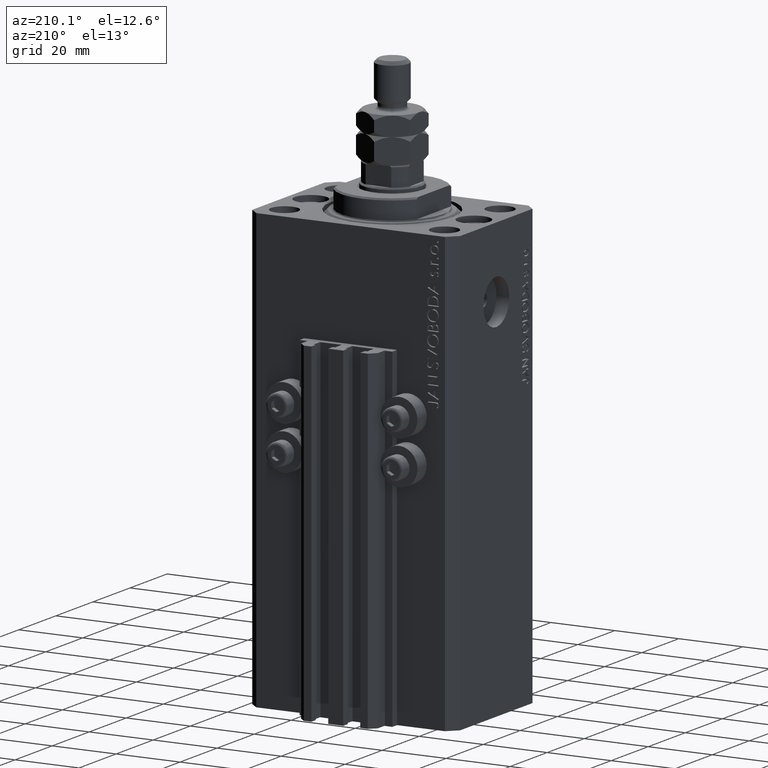
[diagram: clean part render]
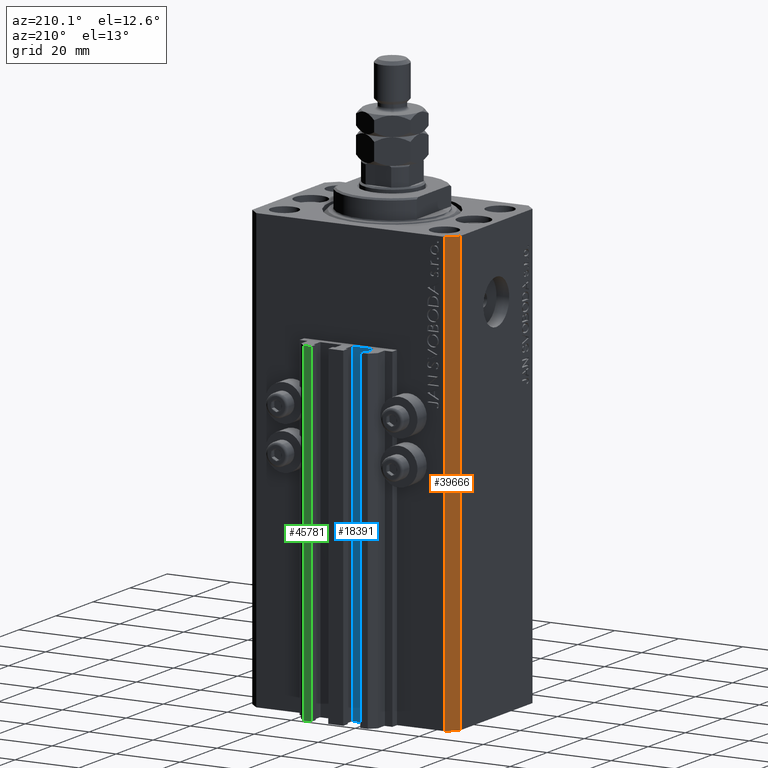
[diagram: same view with three faces highlighted in distinct colors, each labeled with its STEP entity id]
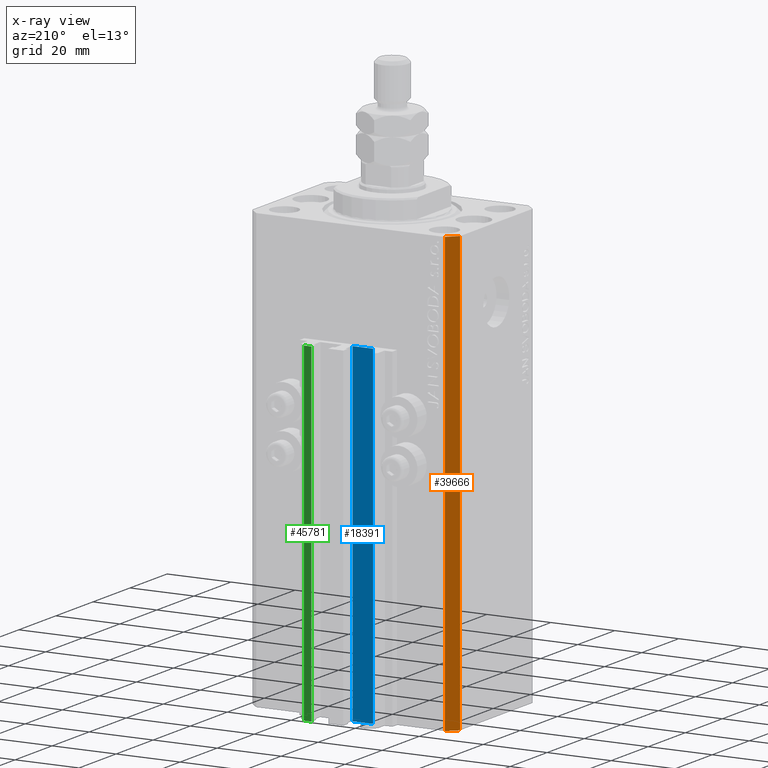
[diagram: x-ray of the same camera — body ghosted, the three highlighted faces saturated]
A machine part, auxiliary view with three faces highlighted in distinct colors.
The next image is the same camera in x-ray (body ghosted, the three faces saturated) — at least one of them is partly hidden behind the body in this view.
Their STEP definitions:

[orange] entity #39666 — the highlighted planar face has unit normal (-0.7071, 0.7071, 0).
#219 = LINE ( 'NONE', #3195, #4381 ) ;
#1253 = ORIENTED_EDGE ( 'NONE', *, *, #16434, .T. ) ;
#2565 = CARTESIAN_POINT ( 'NONE',  ( -29.49999999999650413, 22.49999999999949907, -137.0000000000000000 ) ) ;
#3195 = CARTESIAN_POINT ( 'NONE',  ( -29.49999999999650413, 22.49999999999949907, 0.000000000000000000 ) ) ;
#4381 = VECTOR ( 'NONE', #26360, 1000.000000000000114 ) ;
#5050 = DIRECTION ( 'NONE',  ( -0.7071067811865474617, -0.7071067811865474617, 0.000000000000000000 ) ) ;
#6721 = VECTOR ( 'NONE', #32121, 1000.000000000000000 ) ;
#13436 = FACE_OUTER_BOUND ( 'NONE', #17904, .T. ) ;
#13884 = ORIENTED_EDGE ( 'NONE', *, *, #30426, .T. ) ;
#13973 = VECTOR ( 'NONE', #5050, 1000.000000000000114 ) ;
#14706 = VERTEX_POINT ( 'NONE', #45389 ) ;
#14916 = CARTESIAN_POINT ( 'NONE',  ( -29.49999999999650413, 22.49999999999949907, 0.000000000000000000 ) ) ;
#15120 = VERTEX_POINT ( 'NONE', #42763 ) ;
#16145 = LINE ( 'NONE', #19832, #13973 ) ;
#16235 = VERTEX_POINT ( 'NONE', #14916 ) ;
#16434 = EDGE_CURVE ( 'NONE', #15120, #14706, #24494, .T. ) ;
#16622 = DIRECTION ( 'NONE',  ( 0.000000000000000000, 0.000000000000000000, 1.000000000000000000 ) ) ;
#17904 = EDGE_LOOP ( 'NONE', ( #20230, #23430, #13884, #1253 ) ) ;
#18092 = DIRECTION ( 'NONE',  ( -0.7071067811865475727, 0.7071067811865475727, 0.000000000000000000 ) ) ;
#19832 = CARTESIAN_POINT ( 'NONE',  ( -29.49999999999650413, 22.49999999999949907, -137.0000000000000000 ) ) ;
#20230 = ORIENTED_EDGE ( 'NONE', *, *, #24574, .F. ) ;
#23430 = ORIENTED_EDGE ( 'NONE', *, *, #40021, .F. ) ;
#24494 = LINE ( 'NONE', #43482, #38973 ) ;
#24574 = EDGE_CURVE ( 'NONE', #16235, #14706, #219, .T. ) ;
#24833 = AXIS2_PLACEMENT_3D ( 'NONE', #2565, #18092, #28473 ) ;
#25790 = CARTESIAN_POINT ( 'NONE',  ( -29.49999999999650413, 22.49999999999949907, -137.0000000000000000 ) ) ;
#26360 = DIRECTION ( 'NONE',  ( -0.7071067811865474617, -0.7071067811865474617, 0.000000000000000000 ) ) ;
#28473 = DIRECTION ( 'NONE',  ( -0.7071067811865474617, -0.7071067811865474617, 0.000000000000000000 ) ) ;
#30426 = EDGE_CURVE ( 'NONE', #46012, #15120, #16145, .T. ) ;
#32121 = DIRECTION ( 'NONE',  ( 0.000000000000000000, 0.000000000000000000, 1.000000000000000000 ) ) ;
#36060 = CARTESIAN_POINT ( 'NONE',  ( -29.49999999999650413, 22.49999999999949907, -137.0000000000000000 ) ) ;
#36355 = PLANE ( 'NONE',  #24833 ) ;
#38973 = VECTOR ( 'NONE', #16622, 1000.000000000000000 ) ;
#39666 = ADVANCED_FACE ( 'NONE', ( #13436 ), #36355, .T. ) ;
#40021 = EDGE_CURVE ( 'NONE', #46012, #16235, #47638, .T. ) ;
#42763 = CARTESIAN_POINT ( 'NONE',  ( -32.49999999999650413, 19.49999999999949907, -137.0000000000000000 ) ) ;
#43482 = CARTESIAN_POINT ( 'NONE',  ( -32.49999999999650413, 19.49999999999949907, -137.0000000000000000 ) ) ;
#45389 = CARTESIAN_POINT ( 'NONE',  ( -32.49999999999650413, 19.49999999999949907, 0.000000000000000000 ) ) ;
#46012 = VERTEX_POINT ( 'NONE', #25790 ) ;
#47638 = LINE ( 'NONE', #36060, #6721 ) ;

[blue] entity #18391 — the highlighted planar face has unit normal (0, 1, 0).
#1216 = EDGE_CURVE ( 'NONE', #16616, #8449, #41531, .T. ) ;
#1580 = EDGE_CURVE ( 'NONE', #8449, #37529, #35302, .T. ) ;
#5218 = CARTESIAN_POINT ( 'NONE',  ( -8.199999999999999289, 24.49999999999949551, -137.0000000000000000 ) ) ;
#5611 = CARTESIAN_POINT ( 'NONE',  ( -1.800000000000000933, 24.49999999999949551, -137.0000000000000000 ) ) ;
#8449 = VERTEX_POINT ( 'NONE', #21545 ) ;
#9522 = ORIENTED_EDGE ( 'NONE', *, *, #1216, .T. ) ;
#9757 = CARTESIAN_POINT ( 'NONE',  ( -1.800000000000000933, 24.49999999999949551, -137.0000000000000000 ) ) ;
#10010 = VECTOR ( 'NONE', #31149, 1000.000000000000000 ) ;
#11091 = ORIENTED_EDGE ( 'NONE', *, *, #22262, .F. ) ;
#11895 = CARTESIAN_POINT ( 'NONE',  ( -1.800000000000000933, 24.49999999999949551, -137.0000000000000000 ) ) ;
#14714 = CARTESIAN_POINT ( 'NONE',  ( -8.199999999999999289, 24.49999999999949551, -33.00000000000000000 ) ) ;
#16616 = VERTEX_POINT ( 'NONE', #11895 ) ;
#16946 = VECTOR ( 'NONE', #36163, 1000.000000000000000 ) ;
#17497 = EDGE_CURVE ( 'NONE', #16616, #44070, #35674, .T. ) ;
#18391 = ADVANCED_FACE ( 'NONE', ( #31259 ), #28042, .T. ) ;
#18916 = ORIENTED_EDGE ( 'NONE', *, *, #17497, .F. ) ;
#21545 = CARTESIAN_POINT ( 'NONE',  ( -8.199999999999999289, 24.49999999999949551, -137.0000000000000000 ) ) ;
#21892 = ORIENTED_EDGE ( 'NONE', *, *, #1580, .T. ) ;
#22262 = EDGE_CURVE ( 'NONE', #44070, #37529, #42246, .T. ) ;
#26972 = DIRECTION ( 'NONE',  ( -1.000000000000000000, 0.000000000000000000, 0.000000000000000000 ) ) ;
#28042 = PLANE ( 'NONE',  #43769 ) ;
#31149 = DIRECTION ( 'NONE',  ( -1.000000000000000000, 0.000000000000000000, 0.000000000000000000 ) ) ;
#31259 = FACE_OUTER_BOUND ( 'NONE', #44934, .T. ) ;
#35302 = LINE ( 'NONE', #5218, #36172 ) ;
#35446 = DIRECTION ( 'NONE',  ( 0.000000000000000000, 1.000000000000000000, -0.000000000000000000 ) ) ;
#35674 = LINE ( 'NONE', #9757, #16946 ) ;
#36163 = DIRECTION ( 'NONE',  ( 0.000000000000000000, 0.000000000000000000, 1.000000000000000000 ) ) ;
#36172 = VECTOR ( 'NONE', #42201, 1000.000000000000000 ) ;
#37529 = VERTEX_POINT ( 'NONE', #14714 ) ;
#38478 = VECTOR ( 'NONE', #26972, 1000.000000000000000 ) ;
#41531 = LINE ( 'NONE', #42007, #38478 ) ;
#42007 = CARTESIAN_POINT ( 'NONE',  ( -1.800000000000000933, 24.49999999999949551, -137.0000000000000000 ) ) ;
#42201 = DIRECTION ( 'NONE',  ( 0.000000000000000000, 0.000000000000000000, 1.000000000000000000 ) ) ;
#42246 = LINE ( 'NONE', #46670, #10010 ) ;
#43769 = AXIS2_PLACEMENT_3D ( 'NONE', #5611, #35446, #46054 ) ;
#44070 = VERTEX_POINT ( 'NONE', #44596 ) ;
#44596 = CARTESIAN_POINT ( 'NONE',  ( -1.800000000000000933, 24.49999999999949551, -33.00000000000000000 ) ) ;
#44934 = EDGE_LOOP ( 'NONE', ( #11091, #18916, #9522, #21892 ) ) ;
#46054 = DIRECTION ( 'NONE',  ( 0.000000000000000000, 0.000000000000000000, 1.000000000000000000 ) ) ;
#46670 = CARTESIAN_POINT ( 'NONE',  ( -1.800000000000000933, 24.49999999999949551, -33.00000000000000000 ) ) ;

[green] entity #45781 — the highlighted planar face has unit normal (-0, 1, 0).
#1652 = CARTESIAN_POINT ( 'NONE',  ( 7.649999999999995026, 30.49999999999949196, -33.00000000000000000 ) ) ;
#3603 = EDGE_CURVE ( 'NONE', #5213, #20207, #24766, .T. ) ;
#4267 = EDGE_CURVE ( 'NONE', #20207, #30171, #46564, .T. ) ;
#5213 = VERTEX_POINT ( 'NONE', #17440 ) ;
#5254 = VECTOR ( 'NONE', #36248, 1000.000000000000000 ) ;
#5721 = VERTEX_POINT ( 'NONE', #34385 ) ;
#10217 = DIRECTION ( 'NONE',  ( -1.000000000000000000, -1.476360405086644852E-15, 0.000000000000000000 ) ) ;
#12017 = DIRECTION ( 'NONE',  ( -1.000000000000000000, -1.476360405086644852E-15, 0.000000000000000000 ) ) ;
#12201 = EDGE_CURVE ( 'NONE', #5721, #30171, #41109, .T. ) ;
#14004 = AXIS2_PLACEMENT_3D ( 'NONE', #22945, #37986, #33086 ) ;
#14820 = FACE_OUTER_BOUND ( 'NONE', #46626, .T. ) ;
#17440 = CARTESIAN_POINT ( 'NONE',  ( 9.999999999999994671, 30.49999999999949551, -137.0000000000000000 ) ) ;
#17785 = ORIENTED_EDGE ( 'NONE', *, *, #27569, .F. ) ;
#20207 = VERTEX_POINT ( 'NONE', #26731 ) ;
#22945 = CARTESIAN_POINT ( 'NONE',  ( 9.999999999999994671, 30.49999999999949551, -137.0000000000000000 ) ) ;
#24289 = CARTESIAN_POINT ( 'NONE',  ( 9.999999999999994671, 30.49999999999949551, -137.0000000000000000 ) ) ;
#24766 = LINE ( 'NONE', #24289, #29156 ) ;
#25362 = CARTESIAN_POINT ( 'NONE',  ( 9.999999999999994671, 30.49999999999949551, -137.0000000000000000 ) ) ;
#26731 = CARTESIAN_POINT ( 'NONE',  ( 7.649999999999995026, 30.49999999999949196, -137.0000000000000000 ) ) ;
#27050 = CARTESIAN_POINT ( 'NONE',  ( 9.999999999999994671, 30.49999999999949551, -33.00000000000000000 ) ) ;
#27295 = ORIENTED_EDGE ( 'NONE', *, *, #3603, .T. ) ;
#27569 = EDGE_CURVE ( 'NONE', #5213, #5721, #29083, .T. ) ;
#28238 = ORIENTED_EDGE ( 'NONE', *, *, #12201, .F. ) ;
#29083 = LINE ( 'NONE', #25362, #5254 ) ;
#29156 = VECTOR ( 'NONE', #10217, 1000.000000000000000 ) ;
#30171 = VERTEX_POINT ( 'NONE', #1652 ) ;
#30179 = DIRECTION ( 'NONE',  ( 0.000000000000000000, 0.000000000000000000, 1.000000000000000000 ) ) ;
#33086 = DIRECTION ( 'NONE',  ( -1.000000000000000000, -1.476360405086645049E-15, 0.000000000000000000 ) ) ;
#34385 = CARTESIAN_POINT ( 'NONE',  ( 9.999999999999994671, 30.49999999999949551, -33.00000000000000000 ) ) ;
#35018 = VECTOR ( 'NONE', #12017, 1000.000000000000000 ) ;
#36248 = DIRECTION ( 'NONE',  ( 0.000000000000000000, 0.000000000000000000, 1.000000000000000000 ) ) ;
#37986 = DIRECTION ( 'NONE',  ( -1.476360405086645049E-15, 1.000000000000000000, 0.000000000000000000 ) ) ;
#40943 = VECTOR ( 'NONE', #30179, 1000.000000000000000 ) ;
#41109 = LINE ( 'NONE', #27050, #35018 ) ;
#41693 = PLANE ( 'NONE',  #14004 ) ;
#44745 = CARTESIAN_POINT ( 'NONE',  ( 7.649999999999995026, 30.49999999999949196, -137.0000000000000000 ) ) ;
#45781 = ADVANCED_FACE ( 'NONE', ( #14820 ), #41693, .T. ) ;
#45936 = ORIENTED_EDGE ( 'NONE', *, *, #4267, .T. ) ;
#46564 = LINE ( 'NONE', #44745, #40943 ) ;
#46626 = EDGE_LOOP ( 'NONE', ( #28238, #17785, #27295, #45936 ) ) ;